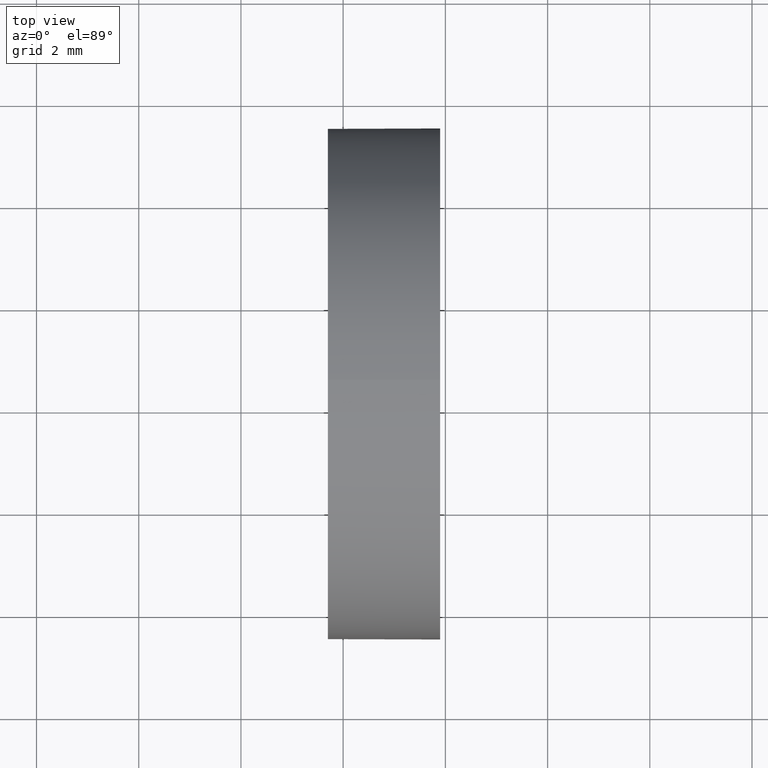
[diagram: clean part render]
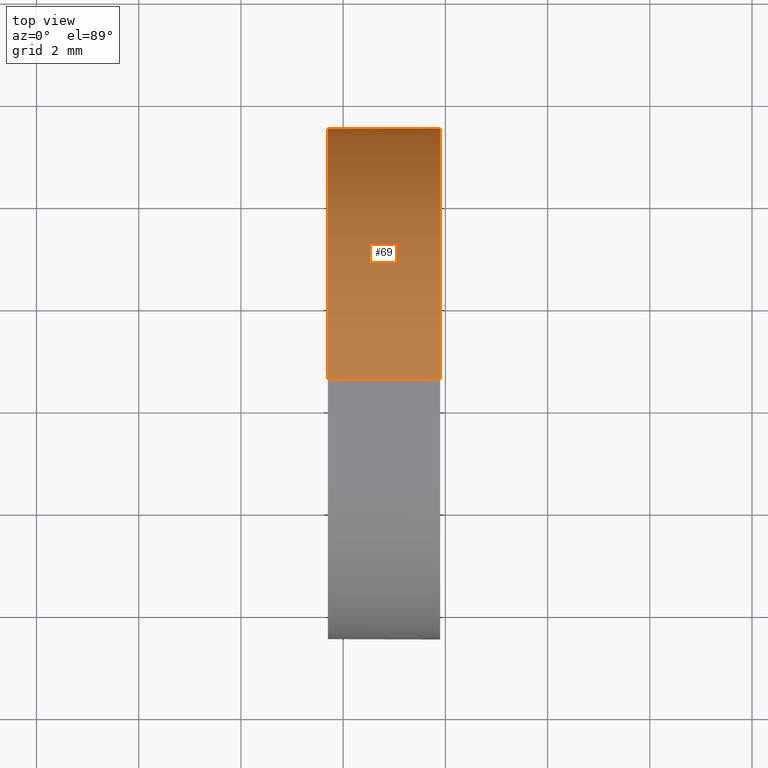
[diagram: same view with one face highlighted and labeled with its STEP entity id]
A machine part, top view. The second image highlights one B-rep face of the part: STEP entity #69.
In plain terms, the highlighted cylindrical surface (partial cylindrical patch) has radius 5 mm, axis along (-1, -0, -0).
Its self-contained STEP definition (entity closure, byte-faithful):
#2 = EDGE_CURVE ( 'NONE', #111, #73, #54, .T. ) ;
#4 = DIRECTION ( 'NONE',  ( -1.000000000000000000, -0.0000000000000000000, -0.0000000000000000000 ) ) ;
#7 = EDGE_CURVE ( 'NONE', #159, #73, #11, .T. ) ;
#10 = EDGE_CURVE ( 'NONE', #107, #159, #15, .T. ) ;
#11 = LINE ( 'NONE', #175, #160 ) ;
#15 = CIRCLE ( 'NONE', #37, 4.999999999999990200 ) ;
#19 = CARTESIAN_POINT ( 'NONE',  ( 49.89643989097209700, 28.47759563463748100, -4.999999999999990200 ) ) ;
#22 = CYLINDRICAL_SURFACE ( 'NONE', #97, 4.999999999999993800 ) ;
#24 = CARTESIAN_POINT ( 'NONE',  ( 49.89643989097209700, 28.47759563463748100, 4.999999999999990200 ) ) ;
#25 = DIRECTION ( 'NONE',  ( 0.0000000000000000000, 0.0000000000000000000, 1.000000000000000000 ) ) ;
#29 = CARTESIAN_POINT ( 'NONE',  ( 49.89643989097209700, 33.47759563463747400, 0.0000000000000000000 ) ) ;
#30 = CARTESIAN_POINT ( 'NONE',  ( 47.70171121220715100, 28.47759563463748100, 4.999999999999997300 ) ) ;
#37 = AXIS2_PLACEMENT_3D ( 'NONE', #44, #172, #101 ) ;
#38 = DIRECTION ( 'NONE',  ( 0.0000000000000000000, 0.0000000000000000000, 1.000000000000000000 ) ) ;
#42 = ORIENTED_EDGE ( 'NONE', *, *, #10, .T. ) ;
#43 = VERTEX_POINT ( 'NONE', #24 ) ;
#44 = CARTESIAN_POINT ( 'NONE',  ( 49.89643989097209700, 28.47759563463748100, 0.0000000000000000000 ) ) ;
#50 = CARTESIAN_POINT ( 'NONE',  ( 44.78209190302423800, 28.47759563463748100, 4.999999999999993800 ) ) ;
#51 = ORIENTED_EDGE ( 'NONE', *, *, #178, .F. ) ;
#54 = CIRCLE ( 'NONE', #122, 4.999999999999997300 ) ;
#55 = DIRECTION ( 'NONE',  ( -1.000000000000000000, -0.0000000000000000000, -0.0000000000000000000 ) ) ;
#69 = ADVANCED_FACE ( 'NONE', ( #154 ), #22, .T. ) ;
#71 = CARTESIAN_POINT ( 'NONE',  ( 44.78209190302423800, 28.47759563463748100, 0.0000000000000000000 ) ) ;
#73 = VERTEX_POINT ( 'NONE', #134 ) ;
#81 = LINE ( 'NONE', #50, #88 ) ;
#86 = ORIENTED_EDGE ( 'NONE', *, *, #183, .T. ) ;
#88 = VECTOR ( 'NONE', #102, 1000.000000000000000 ) ;
#96 = DIRECTION ( 'NONE',  ( -1.000000000000000000, -0.0000000000000000000, -0.0000000000000000000 ) ) ;
#97 = AXIS2_PLACEMENT_3D ( 'NONE', #71, #96, #25 ) ;
#101 = DIRECTION ( 'NONE',  ( 0.0000000000000000000, 0.0000000000000000000, 1.000000000000000000 ) ) ;
#102 = DIRECTION ( 'NONE',  ( -1.000000000000000000, -0.0000000000000000000, -0.0000000000000000000 ) ) ;
#107 = VERTEX_POINT ( 'NONE', #29 ) ;
#111 = VERTEX_POINT ( 'NONE', #30 ) ;
#118 = ORIENTED_EDGE ( 'NONE', *, *, #2, .F. ) ;
#122 = AXIS2_PLACEMENT_3D ( 'NONE', #136, #55, #147 ) ;
#123 = EDGE_LOOP ( 'NONE', ( #42, #186, #118, #51, #86 ) ) ;
#124 = CARTESIAN_POINT ( 'NONE',  ( 49.89643989097209700, 28.47759563463748100, 0.0000000000000000000 ) ) ;
#130 = CIRCLE ( 'NONE', #167, 4.999999999999990200 ) ;
#134 = CARTESIAN_POINT ( 'NONE',  ( 47.70171121220715100, 28.47759563463748100, -4.999999999999997300 ) ) ;
#136 = CARTESIAN_POINT ( 'NONE',  ( 47.70171121220715100, 28.47759563463748100, 0.0000000000000000000 ) ) ;
#147 = DIRECTION ( 'NONE',  ( 0.0000000000000000000, 0.0000000000000000000, 1.000000000000000000 ) ) ;
#154 = FACE_OUTER_BOUND ( 'NONE', #123, .T. ) ;
#159 = VERTEX_POINT ( 'NONE', #19 ) ;
#160 = VECTOR ( 'NONE', #4, 1000.000000000000000 ) ;
#167 = AXIS2_PLACEMENT_3D ( 'NONE', #124, #176, #38 ) ;
#172 = DIRECTION ( 'NONE',  ( -1.000000000000000000, -0.0000000000000000000, -0.0000000000000000000 ) ) ;
#175 = CARTESIAN_POINT ( 'NONE',  ( 44.78209190302423800, 28.47759563463748100, -4.999999999999993800 ) ) ;
#176 = DIRECTION ( 'NONE',  ( -1.000000000000000000, -0.0000000000000000000, -0.0000000000000000000 ) ) ;
#178 = EDGE_CURVE ( 'NONE', #43, #111, #81, .T. ) ;
#183 = EDGE_CURVE ( 'NONE', #43, #107, #130, .T. ) ;
#186 = ORIENTED_EDGE ( 'NONE', *, *, #7, .T. ) ;